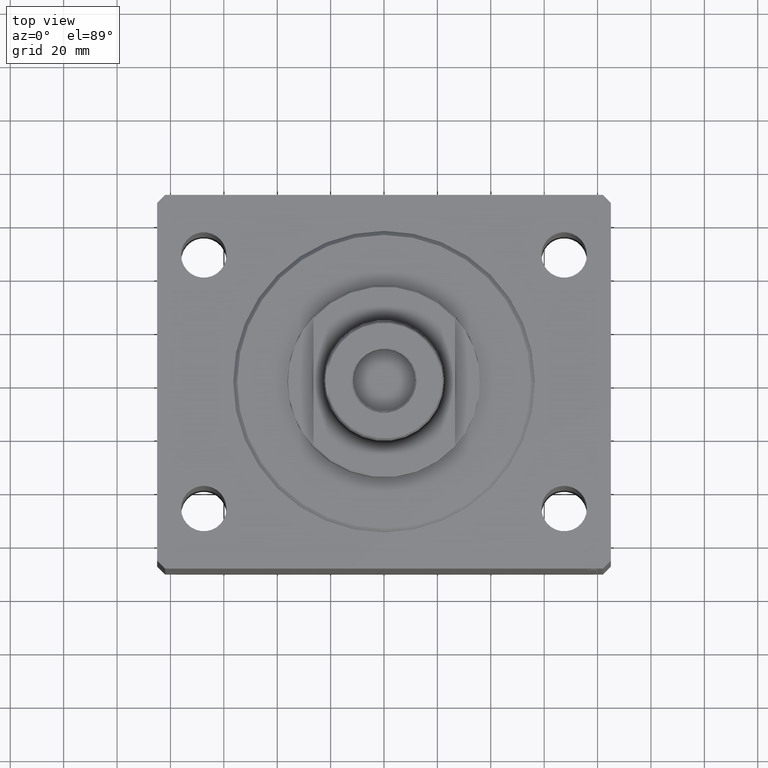
[diagram: clean part render]
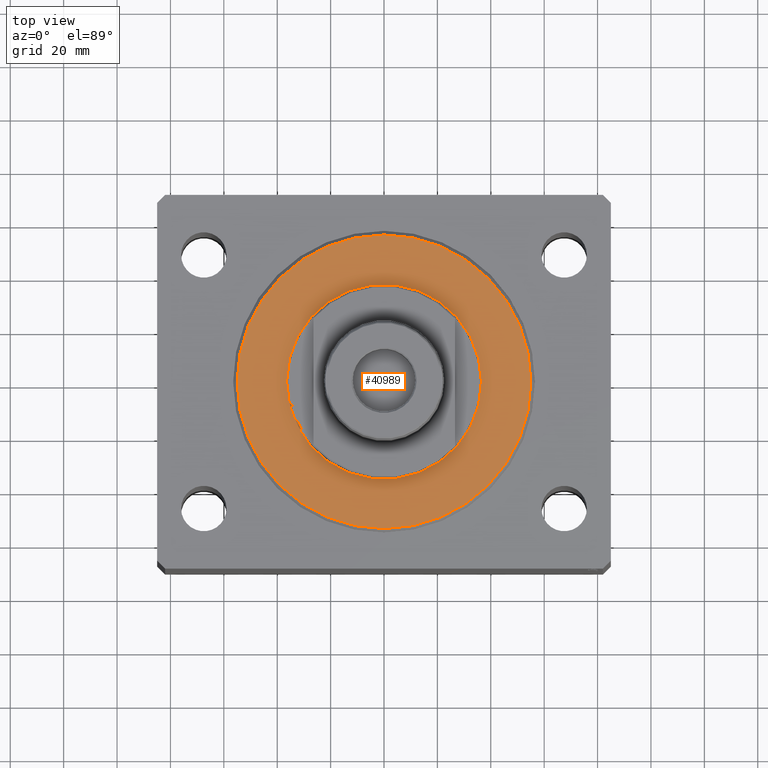
[diagram: same view with one face highlighted and labeled with its STEP entity id]
A machine part, top view. The second image highlights one B-rep face of the part: STEP entity #40989.
In plain terms, the highlighted planar face has unit normal (0, 0, -1).
Its self-contained STEP definition (entity closure, byte-faithful):
#1321 = CIRCLE ( 'NONE', #36178, 55.00000000000000000 ) ;
#4515 = VERTEX_POINT ( 'NONE', #32490 ) ;
#4904 = EDGE_CURVE ( 'NONE', #4515, #8370, #34796, .T. ) ;
#6954 = AXIS2_PLACEMENT_3D ( 'NONE', #10826, #7477, #20203 ) ;
#7477 = DIRECTION ( 'NONE',  ( 0.000000000000000000, 0.000000000000000000, 1.000000000000000000 ) ) ;
#8370 = VERTEX_POINT ( 'NONE', #28417 ) ;
#9066 = DIRECTION ( 'NONE',  ( -0.000000000000000000, -0.000000000000000000, -1.000000000000000000 ) ) ;
#9951 = PLANE ( 'NONE',  #6954 ) ;
#10023 = CARTESIAN_POINT ( 'NONE',  ( -55.00000000000000000, 6.827405905246494765E-15, 0.000000000000000000 ) ) ;
#10077 = CIRCLE ( 'NONE', #34984, 55.00000000000000000 ) ;
#10327 = EDGE_CURVE ( 'NONE', #19736, #36230, #10077, .T. ) ;
#10826 = CARTESIAN_POINT ( 'NONE',  ( 0.000000000000000000, 0.000000000000000000, 0.000000000000000000 ) ) ;
#15848 = EDGE_CURVE ( 'NONE', #8370, #4515, #43954, .T. ) ;
#17925 = CARTESIAN_POINT ( 'NONE',  ( 0.000000000000000000, 0.000000000000000000, 0.000000000000000000 ) ) ;
#18830 = EDGE_LOOP ( 'NONE', ( #23713, #36815 ) ) ;
#19571 = ORIENTED_EDGE ( 'NONE', *, *, #10327, .T. ) ;
#19736 = VERTEX_POINT ( 'NONE', #42653 ) ;
#20203 = DIRECTION ( 'NONE',  ( 1.000000000000000000, 0.000000000000000000, -0.000000000000000000 ) ) ;
#22012 = AXIS2_PLACEMENT_3D ( 'NONE', #41121, #23307, #27294 ) ;
#22584 = EDGE_CURVE ( 'NONE', #36230, #19736, #1321, .T. ) ;
#23307 = DIRECTION ( 'NONE',  ( 0.000000000000000000, 0.000000000000000000, 1.000000000000000000 ) ) ;
#23713 = ORIENTED_EDGE ( 'NONE', *, *, #15848, .T. ) ;
#24233 = CARTESIAN_POINT ( 'NONE',  ( 0.000000000000000000, 0.000000000000000000, 0.000000000000000000 ) ) ;
#24382 = DIRECTION ( 'NONE',  ( 0.000000000000000000, 0.000000000000000000, 1.000000000000000000 ) ) ;
#24421 = FACE_BOUND ( 'NONE', #18830, .T. ) ;
#24741 = AXIS2_PLACEMENT_3D ( 'NONE', #17925, #24382, #34837 ) ;
#25997 = CARTESIAN_POINT ( 'NONE',  ( 0.000000000000000000, 0.000000000000000000, 0.000000000000000000 ) ) ;
#27294 = DIRECTION ( 'NONE',  ( 1.000000000000000000, 0.000000000000000000, 0.000000000000000000 ) ) ;
#27522 = FACE_OUTER_BOUND ( 'NONE', #41126, .T. ) ;
#28417 = CARTESIAN_POINT ( 'NONE',  ( 36.50000000000000000, 0.000000000000000000, -2.168404344971008868E-16 ) ) ;
#31122 = DIRECTION ( 'NONE',  ( 1.000000000000000000, 0.000000000000000000, 0.000000000000000000 ) ) ;
#31344 = DIRECTION ( 'NONE',  ( -0.000000000000000000, -0.000000000000000000, -1.000000000000000000 ) ) ;
#32490 = CARTESIAN_POINT ( 'NONE',  ( -36.50000000000000000, 4.469960816887838430E-15, -2.168404344971008868E-16 ) ) ;
#34796 = CIRCLE ( 'NONE', #22012, 36.50000000000000000 ) ;
#34837 = DIRECTION ( 'NONE',  ( 1.000000000000000000, 0.000000000000000000, 0.000000000000000000 ) ) ;
#34984 = AXIS2_PLACEMENT_3D ( 'NONE', #25997, #9066, #37291 ) ;
#36178 = AXIS2_PLACEMENT_3D ( 'NONE', #24233, #31344, #31122 ) ;
#36230 = VERTEX_POINT ( 'NONE', #10023 ) ;
#36815 = ORIENTED_EDGE ( 'NONE', *, *, #4904, .T. ) ;
#37291 = DIRECTION ( 'NONE',  ( 1.000000000000000000, 0.000000000000000000, 0.000000000000000000 ) ) ;
#39580 = ORIENTED_EDGE ( 'NONE', *, *, #22584, .T. ) ;
#40989 = ADVANCED_FACE ( 'NONE', ( #24421, #27522 ), #9951, .F. ) ;
#41121 = CARTESIAN_POINT ( 'NONE',  ( 0.000000000000000000, 0.000000000000000000, 0.000000000000000000 ) ) ;
#41126 = EDGE_LOOP ( 'NONE', ( #19571, #39580 ) ) ;
#42653 = CARTESIAN_POINT ( 'NONE',  ( 55.00000000000000000, 0.000000000000000000, 0.000000000000000000 ) ) ;
#43954 = CIRCLE ( 'NONE', #24741, 36.50000000000000000 ) ;